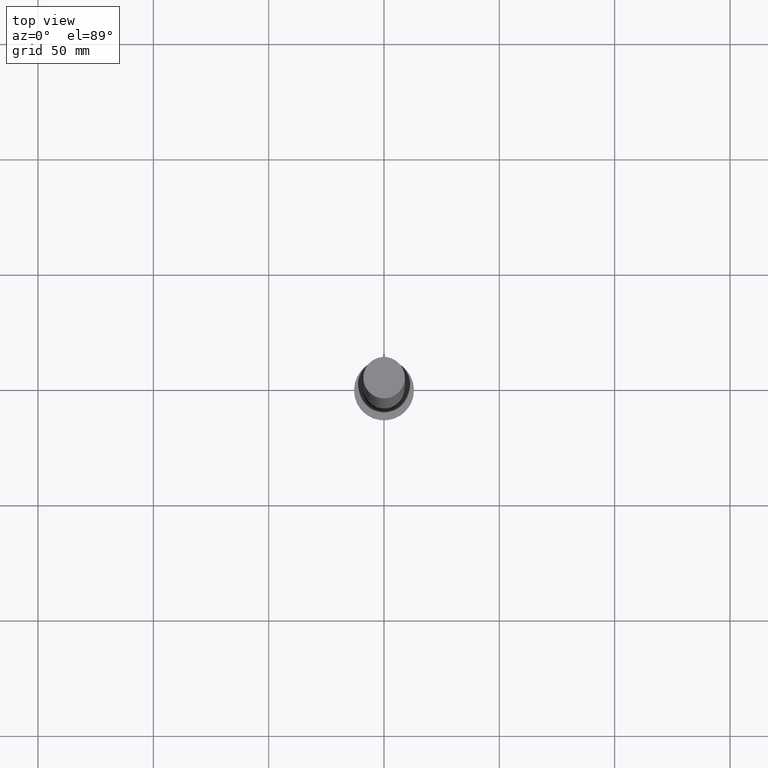
[diagram: clean part render]
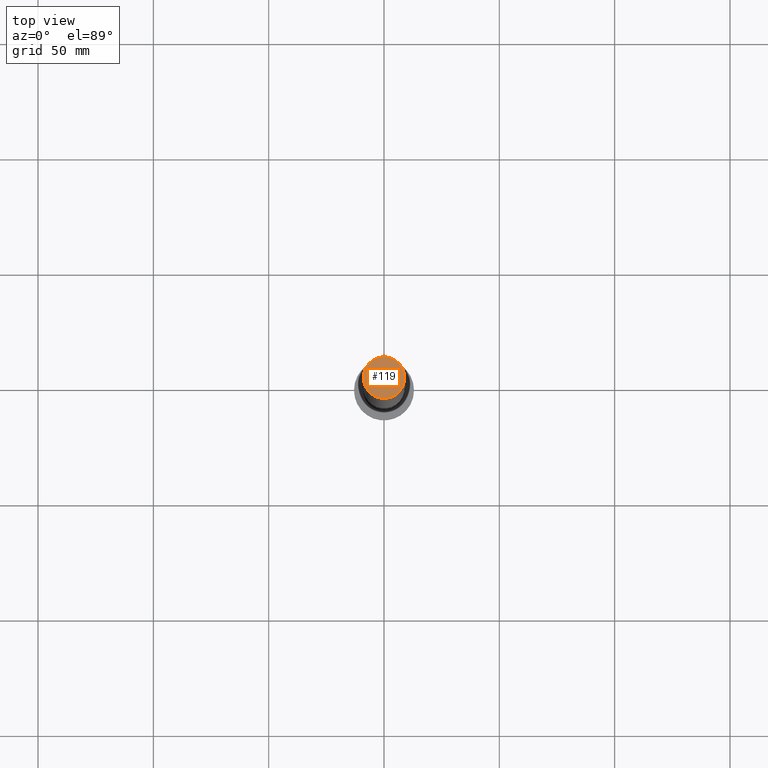
[diagram: same view with one face highlighted and labeled with its STEP entity id]
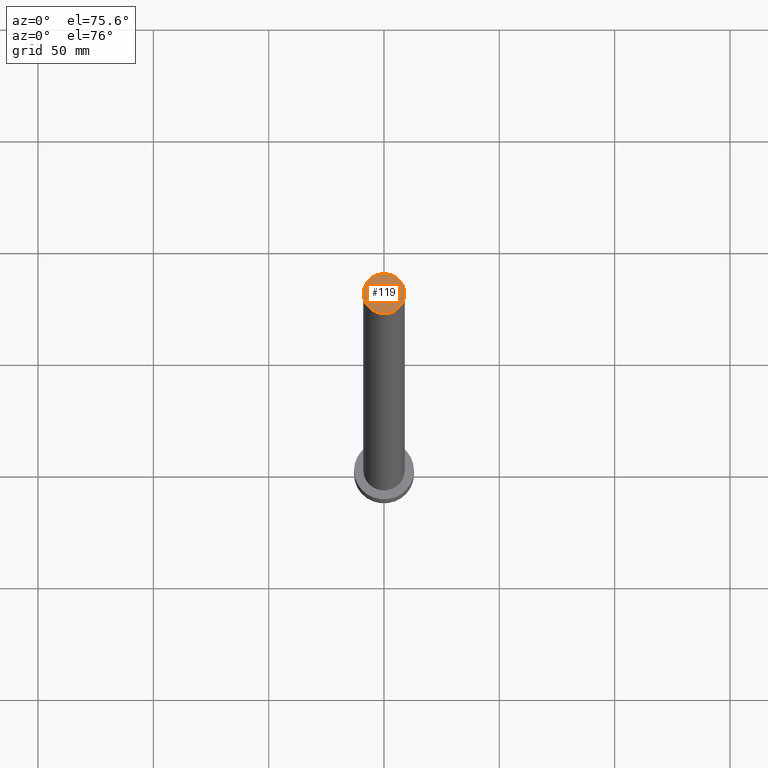
[diagram: same view with one face highlighted and labeled with its STEP entity id]
A machine part, top view. The second image highlights one B-rep face of the part: STEP entity #119.
A second angle (auxiliary view) of the same face is appended — the face is thin or edge-on in the first view.
In plain terms, the highlighted planar face has unit normal (0, 0, 1).
Its self-contained STEP definition (entity closure, byte-faithful):
#12 = VERTEX_POINT ( 'NONE', #238 ) ;
#31 = DIRECTION ( 'NONE',  ( 1.000000000000000000, 0.000000000000000000, -0.000000000000000000 ) ) ;
#39 = DIRECTION ( 'NONE',  ( 0.000000000000000000, 0.000000000000000000, 1.000000000000000000 ) ) ;
#42 = AXIS2_PLACEMENT_3D ( 'NONE', #118, #76, #232 ) ;
#47 = EDGE_CURVE ( 'NONE', #189, #12, #160, .T. ) ;
#61 = ORIENTED_EDGE ( 'NONE', *, *, #47, .T. ) ;
#68 = CARTESIAN_POINT ( 'NONE',  ( 9.000000000000000000, 1.102182119232617714E-15, 315.0000000000000000 ) ) ;
#76 = DIRECTION ( 'NONE',  ( 0.000000000000000000, 0.000000000000000000, 1.000000000000000000 ) ) ;
#118 = CARTESIAN_POINT ( 'NONE',  ( 0.000000000000000000, 0.000000000000000000, 315.0000000000000000 ) ) ;
#119 = ADVANCED_FACE ( 'NONE', ( #128 ), #182, .T. ) ;
#128 = FACE_OUTER_BOUND ( 'NONE', #164, .T. ) ;
#137 = AXIS2_PLACEMENT_3D ( 'NONE', #191, #163, #31 ) ;
#160 = CIRCLE ( 'NONE', #178, 9.000000000000000000 ) ;
#163 = DIRECTION ( 'NONE',  ( 0.000000000000000000, 0.000000000000000000, 1.000000000000000000 ) ) ;
#164 = EDGE_LOOP ( 'NONE', ( #253, #61 ) ) ;
#173 = CIRCLE ( 'NONE', #42, 9.000000000000000000 ) ;
#178 = AXIS2_PLACEMENT_3D ( 'NONE', #218, #39, #211 ) ;
#182 = PLANE ( 'NONE',  #137 ) ;
#189 = VERTEX_POINT ( 'NONE', #68 ) ;
#191 = CARTESIAN_POINT ( 'NONE',  ( 0.000000000000000000, 0.000000000000000000, 315.0000000000000000 ) ) ;
#211 = DIRECTION ( 'NONE',  ( 1.000000000000000000, 0.000000000000000000, 0.000000000000000000 ) ) ;
#218 = CARTESIAN_POINT ( 'NONE',  ( 0.000000000000000000, 0.000000000000000000, 315.0000000000000000 ) ) ;
#232 = DIRECTION ( 'NONE',  ( 1.000000000000000000, 0.000000000000000000, 0.000000000000000000 ) ) ;
#238 = CARTESIAN_POINT ( 'NONE',  ( -9.000000000000000000, 0.000000000000000000, 315.0000000000000000 ) ) ;
#252 = EDGE_CURVE ( 'NONE', #12, #189, #173, .T. ) ;
#253 = ORIENTED_EDGE ( 'NONE', *, *, #252, .T. ) ;